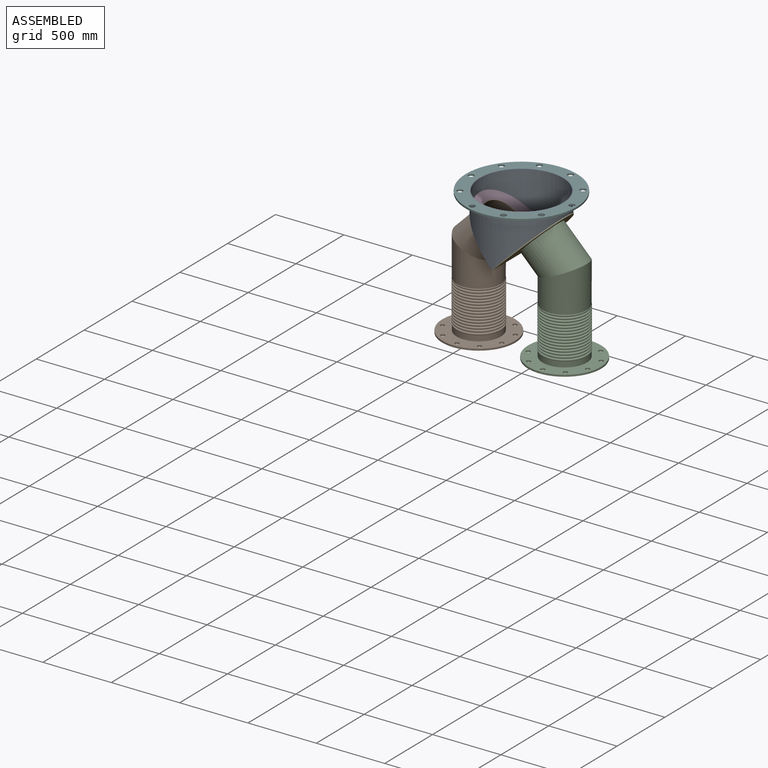
[diagram: assembled view]
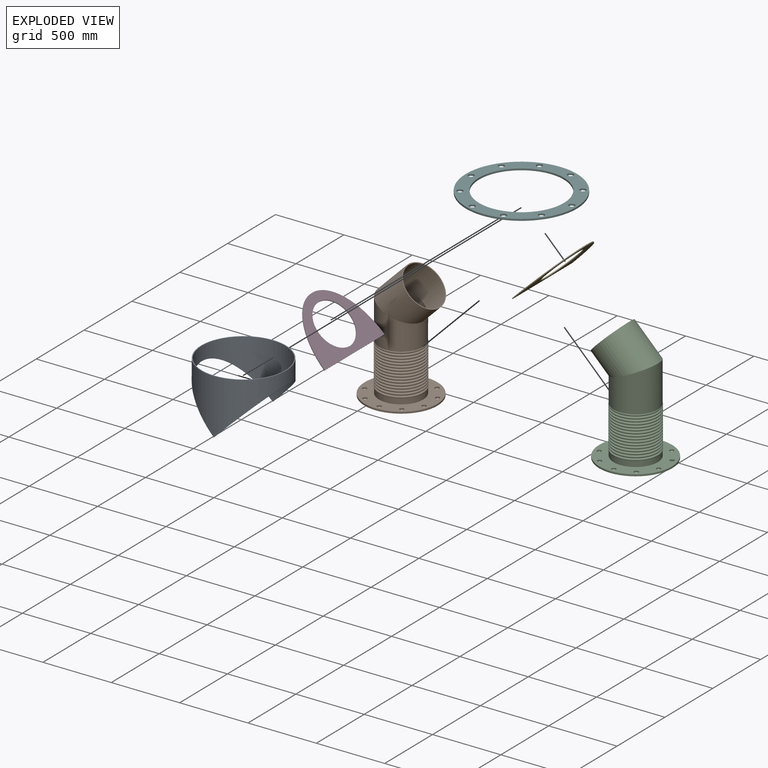
[diagram: exploded view]
GUIDED TOUR — MATED ASSEMBLY WITH SUBASSEMBLIES (Onshape document 0193b54e1186b23830c63294, AutoMate assembly 0193b54e1186b23830c63294_a6a39638752464d87c990a46_e3f97334913c53f67a5aba08_default)

This assembly has 18 component occurrences arranged in 6 top-level units: 4 individual components plus 2 subassemblies (S0, S1). The tour has two levels: first the top level, where each subassembly is treated as one rigid unit; then each subassembly is toured internally in its own section (nesting deeper than one subassembly level is flattened into its subassembly's section).

Components are labeled P0..P17 across the whole record; subassembly units are labeled S0..S1. A mate is a constraint between two units; its type names the relative motion it leaves free:
  FASTENED — locks the two components together rigidly (no relative motion).
Axis/direction vectors are unit vectors and 'through' points are millimeter coordinates, both in the assembly's world frame.

TOP-LEVEL MATES (between units; each subassembly's internal mates are listed in its own section)
  1. FASTENED "Fastened 2": P14 <-> S1, direction (-0.707, 0.000, 0.707) through (-855.40, -209.29, -97.05) mm
  2. FASTENED "Fastened 5": P14 <-> P0, direction (0.000, -1.000, 0.000) through (-1003.58, -520.44, -245.23) mm
  3. FASTENED "Fastened 4": P16 <-> P0, direction (0.000, 0.000, 1.000) through (-1003.58, -209.29, 161.17) mm
  4. FASTENED "Fastened 3": P12 <-> P14, direction (0.000, -1.000, 0.000) through (-1003.58, -520.44, -245.23) mm
  5. FASTENED "Fastened 1": S0 <-> P12, direction (0.707, 0.000, 0.707) through (-1147.26, -209.29, -92.56) mm

TOP-LEVEL ASSEMBLY ORDER
  1. P16 — the base component [order verified]
  2. P0 [order verified]
  3. P14 [order verified]
  4. P12 [order verified]
  5. S1 [order verified]
  6. S0 [order verified]
Order-tag legend:
  [order verified] — this step's position reverses a verified removal order: the component was checked to insert without passing through the ones already placed.

Of the 18 component occurrences, 14 carry the full construction recipe — the FeatureScript program that regenerates the part's solid from scratch; the rest are supplied as boundary geometry only. Each toured unit is shown spotlighted twice — assembled, then exploded with a leader line back to its socket (green = recipe-attached component, orange = geometry-only, blue = subassembly unit; the rest desaturated gray).
NOTE — this tour is split across 2 documents so each fits a 32k-token context. This is document 1: the component sections continue in the remaining 1 document, each repeating the header above.
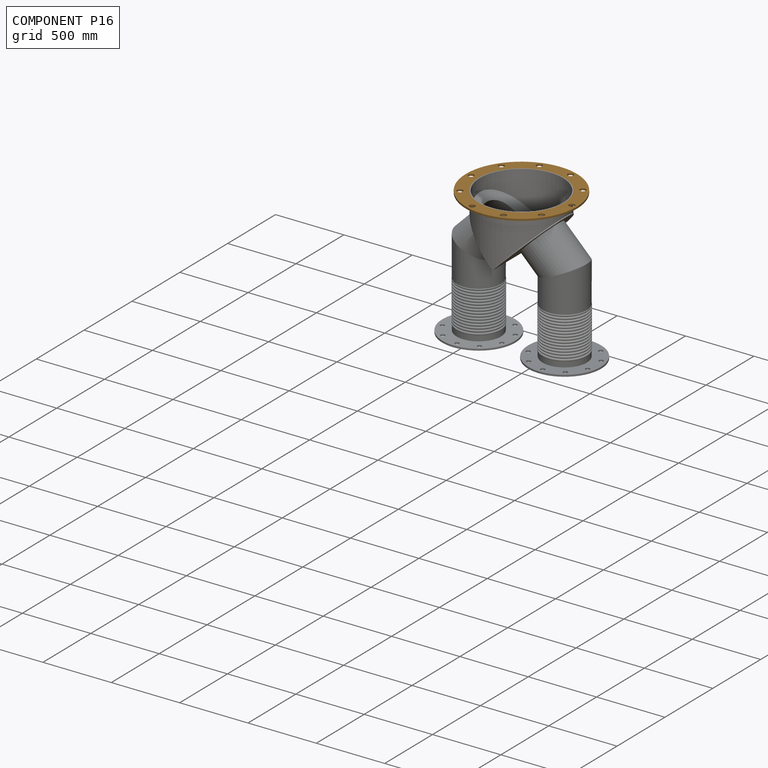
[diagram: component P16 — assembled]
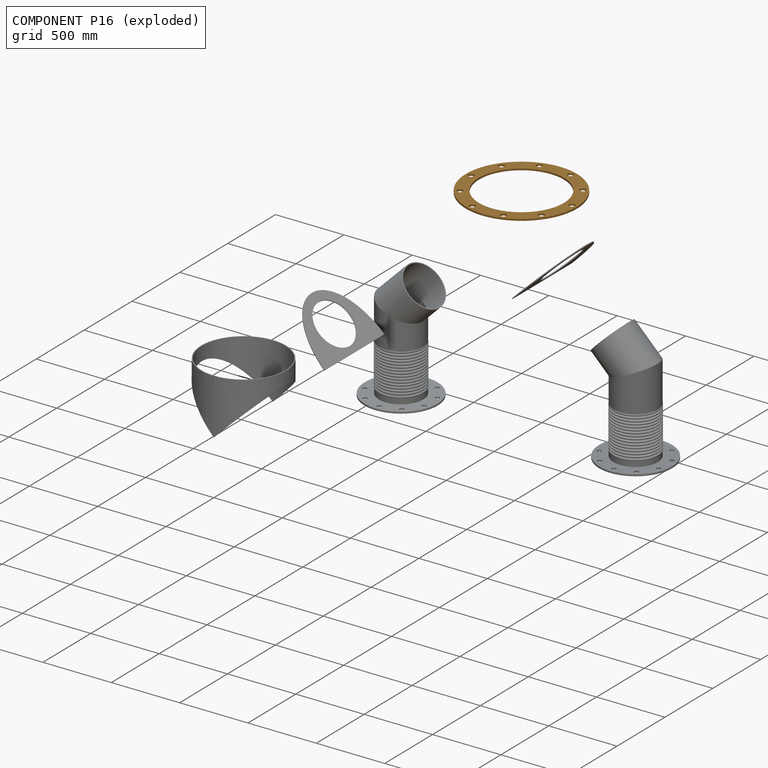
[diagram: component P16 — exploded]
COMPONENT P16 — geometry summary (no construction recipe available for this part):
  bounding box: 812.8 x 812.8 x 12.7 mm
  B-rep topology: 1 solid, 14 faces, 90 edges
  volume: 2547575 mm^3 (30% of its bounding box)
  symmetry: 2-fold rotationally symmetric about the x axis; 2-fold rotationally symmetric about the y axis; 2-fold rotationally symmetric about the z axis; mirror-symmetric across its x mid-plane, y mid-plane, z mid-plane
Held by: FASTENED mate "Fastened 4" to P0.
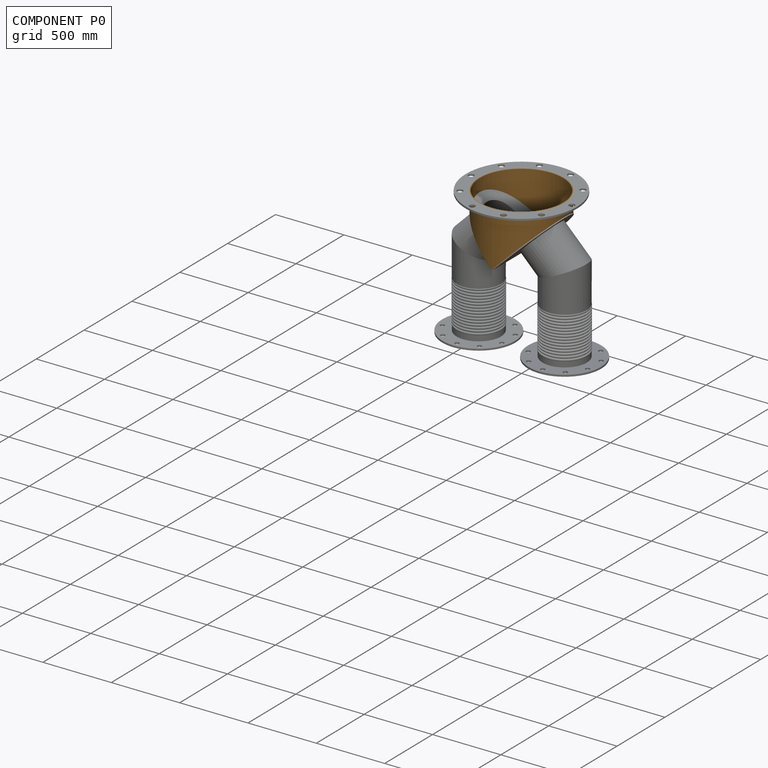
[diagram: component P0 — assembled]
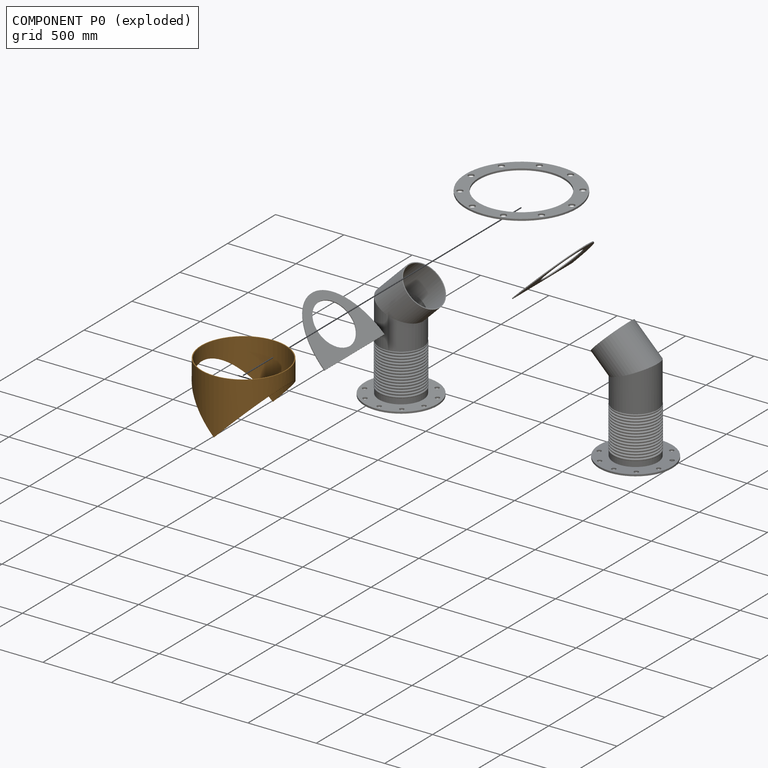
[diagram: component P0 — exploded]
COMPONENT P0 — geometry summary (no construction recipe available for this part):
  bounding box: 622.3 x 622.3 x 406.4 mm
  B-rep topology: 1 solid, 5 faces, 24 edges
  volume: 2584466 mm^3 (2% of its bounding box)
  symmetry: 2-fold rotationally symmetric about the z axis; mirror-symmetric across its x mid-plane, y mid-plane
Held by: FASTENED mate "Fastened 5" to P14; FASTENED mate "Fastened 4" to P16.
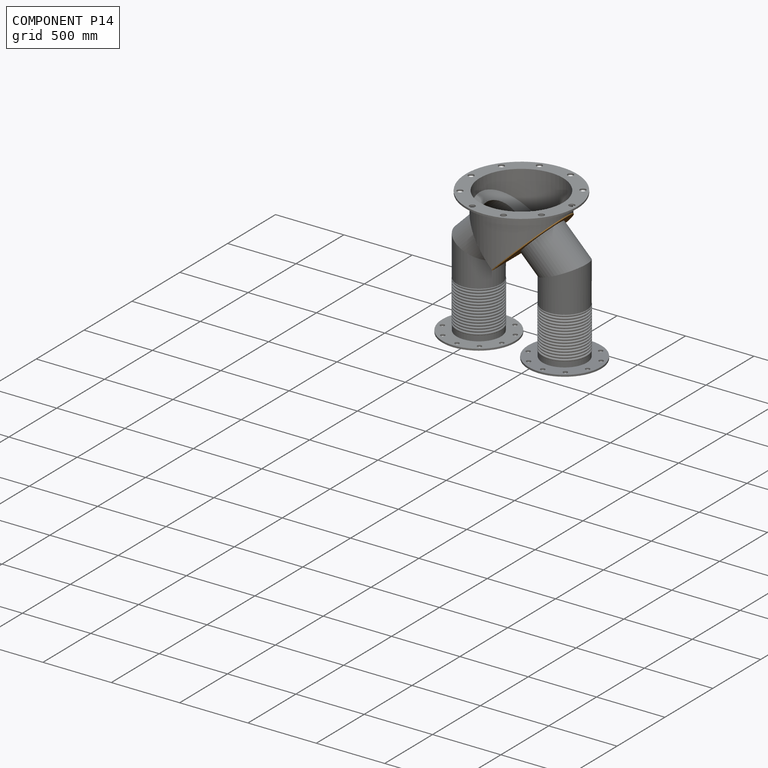
[diagram: component P14 — assembled]
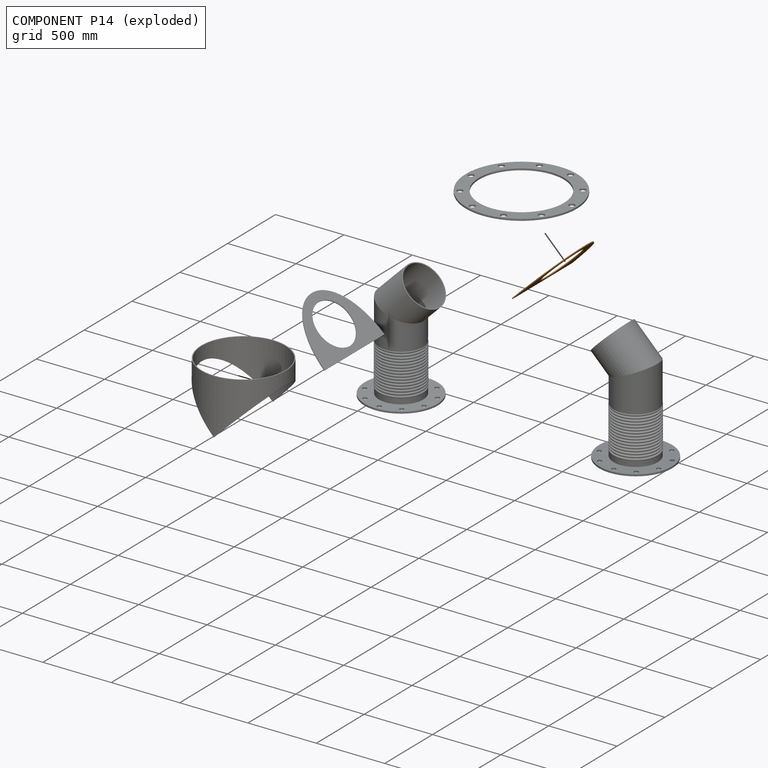
[diagram: component P14 — exploded]
COMPONENT P14 — geometry summary (no construction recipe available for this part):
  bounding box: 622.3 x 315.6 x 315.6 mm
  B-rep topology: 1 solid, 6 faces, 26 edges
  volume: 842618 mm^3 (1% of its bounding box)
  symmetry: mirror-symmetric across its y mid-plane
Held by: FASTENED mate "Fastened 2" to P2; FASTENED mate "Fastened 5" to P0; FASTENED mate "Fastened 3" to P12.
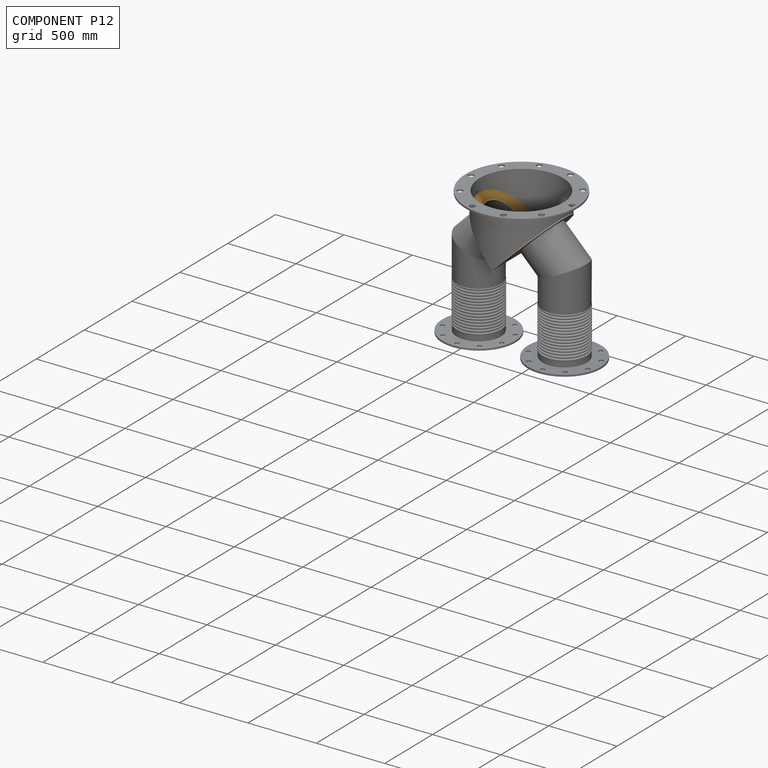
[diagram: component P12 — assembled]
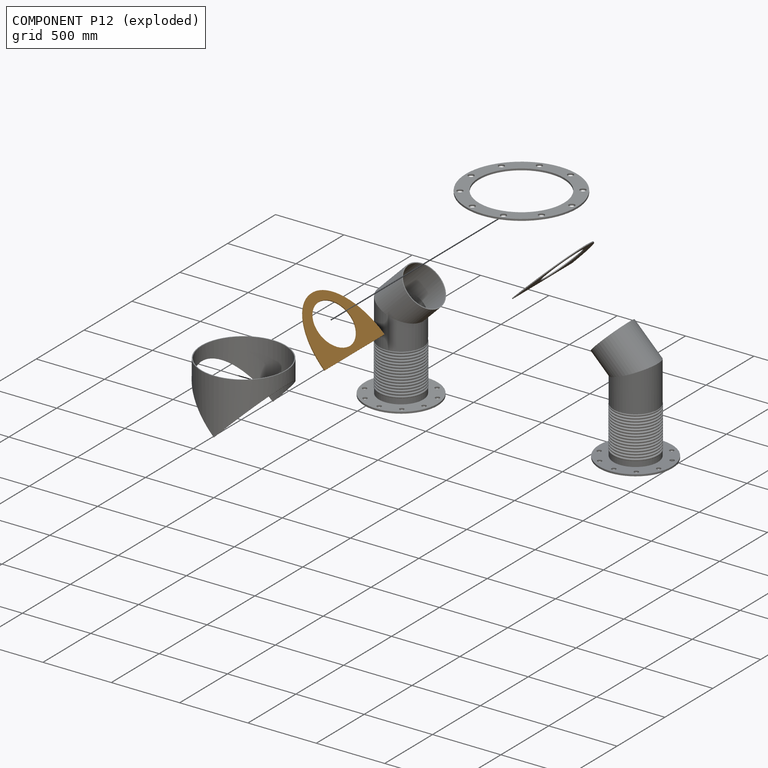
[diagram: component P12 — exploded]
COMPONENT P12 — geometry summary (no construction recipe available for this part):
  bounding box: 622.3 x 315.6 x 315.6 mm
  B-rep topology: 1 solid, 6 faces, 26 edges
  volume: 842618 mm^3 (1% of its bounding box)
  symmetry: mirror-symmetric across its y mid-plane
Held by: FASTENED mate "Fastened 3" to P14; FASTENED mate "Fastened 1" to P1.
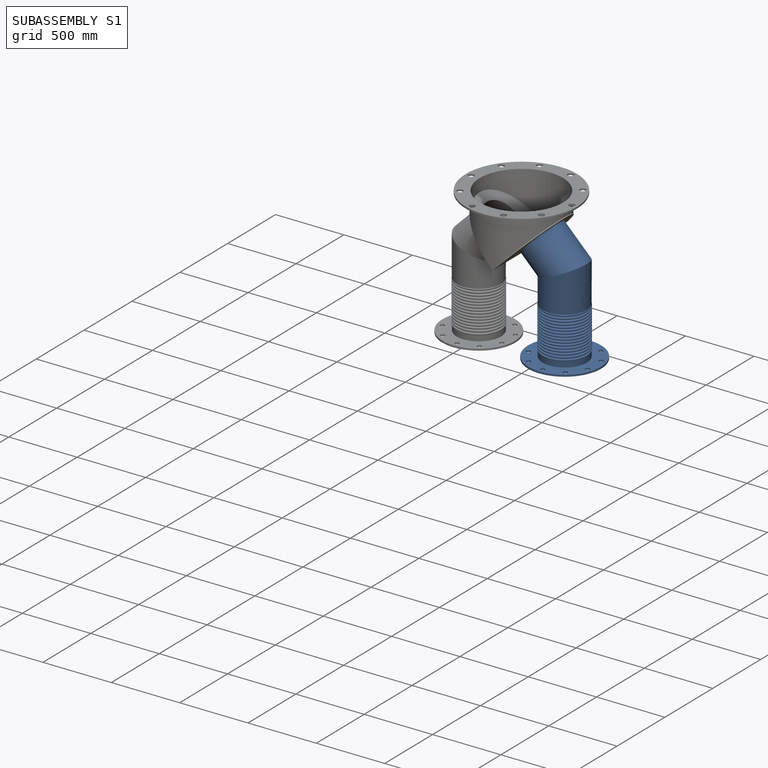
[diagram: subassembly S1 — assembled]
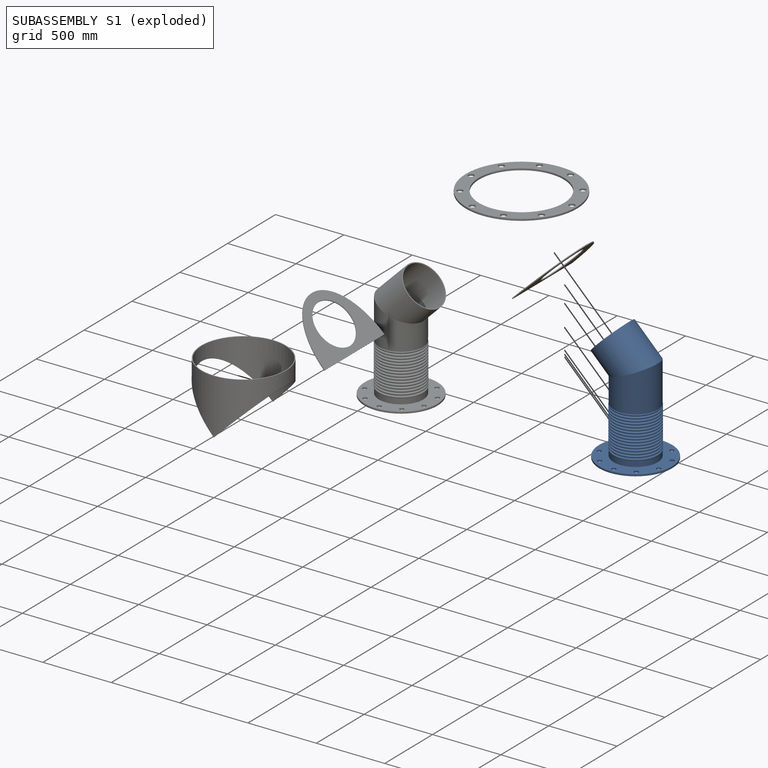
[diagram: subassembly S1 — exploded]
SUBASSEMBLY S1 — 7 components (P2, P3, P4, P7, P11, P15, P17), of which 7 recipe-attached; toured below.
Held by: FASTENED mate "Fastened 2" to P14.
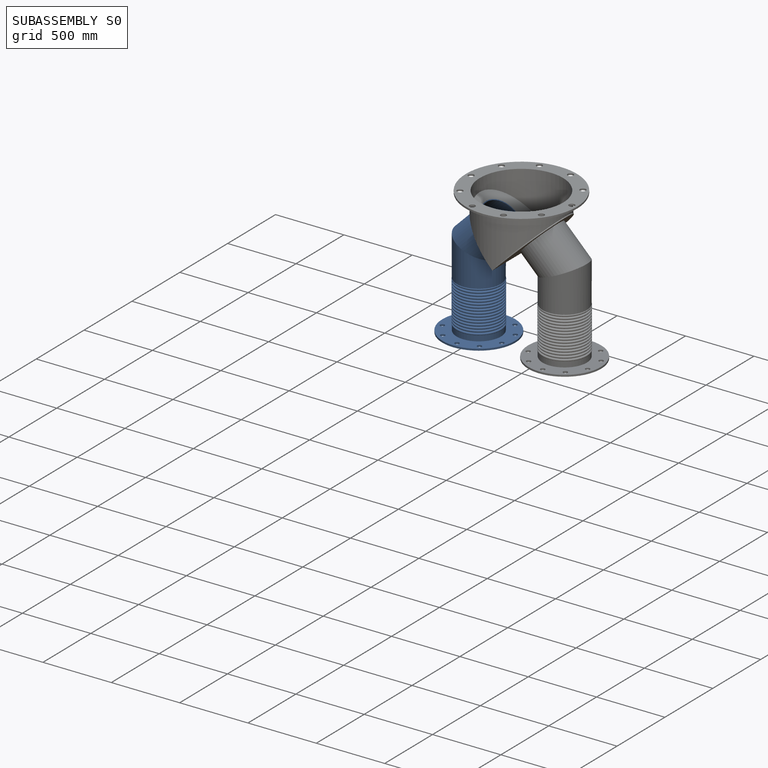
[diagram: subassembly S0 — assembled]
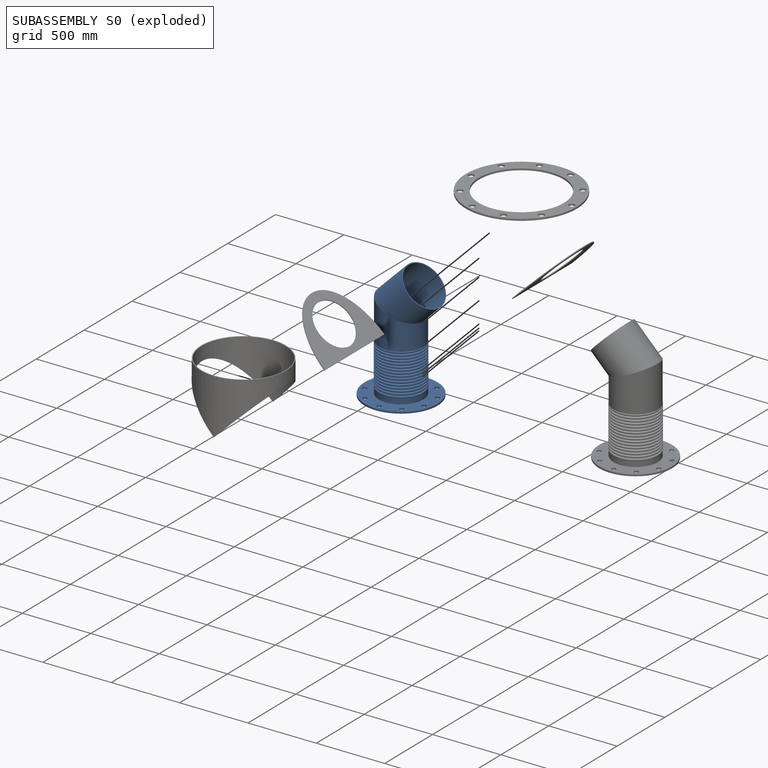
[diagram: subassembly S0 — exploded]
SUBASSEMBLY S0 — 7 components (P1, P5, P6, P8, P9, P10, P13), of which 7 recipe-attached; toured below.
Held by: FASTENED mate "Fastened 1" to P12.
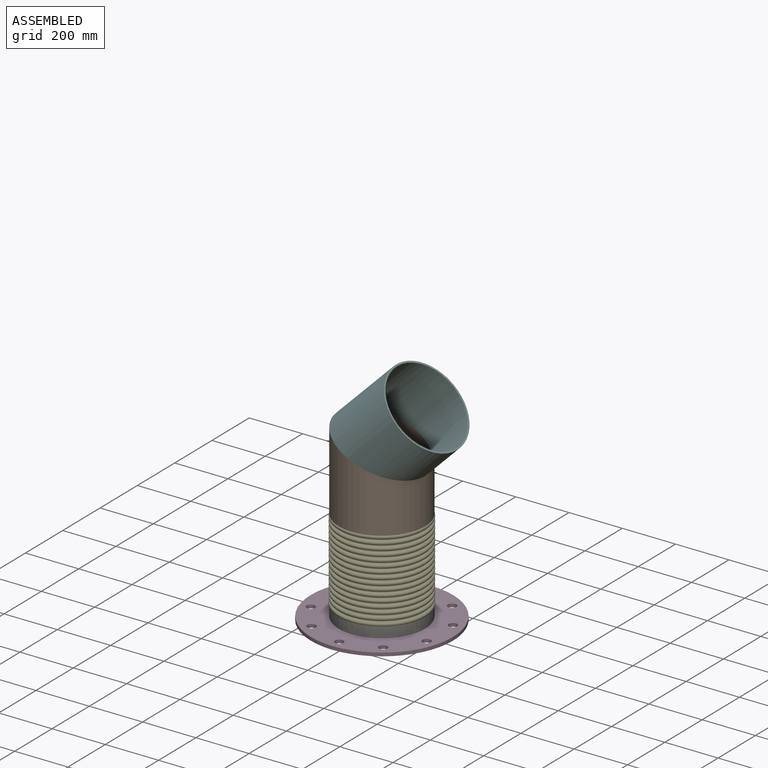
[diagram: subassembly S0 — assembled view]
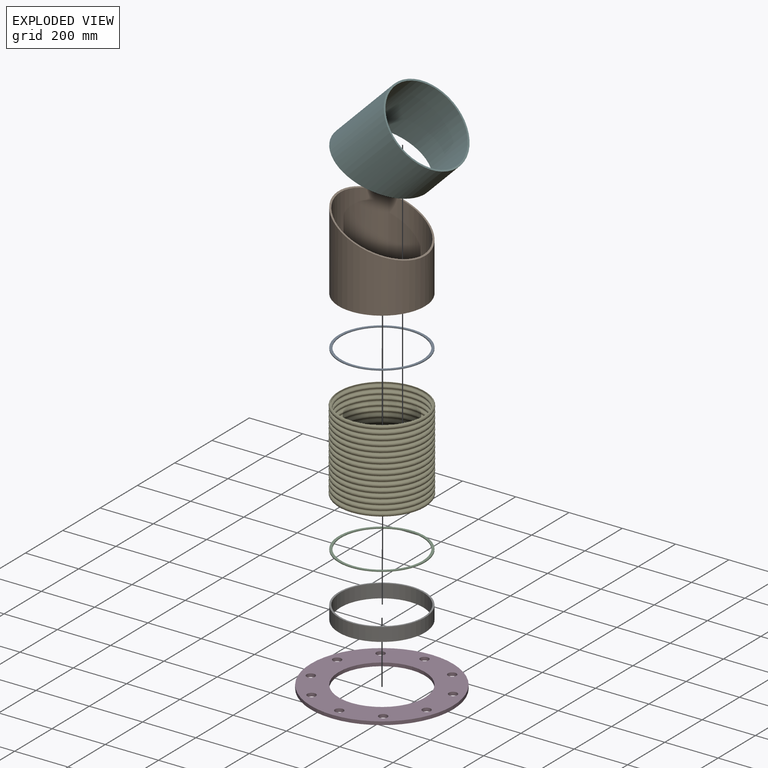
[diagram: subassembly S0 — exploded view]
SUBASSEMBLY S0 TOUR — 7 components, shown here in isolation at its own camera.

INTERNAL MATES
  1. FASTENED "Fastened 1": P13 <-> P8, direction (0.000, 0.000, -1.000) through (-1315.36, -209.29, -858.48) mm
  2. FASTENED "Fastened 5": P1 <-> P5, direction (0.000, 0.000, -1.000) through (-1315.36, -209.29, -498.39) mm
  3. FASTENED "Fastened 3": P6 <-> P9, direction (0.000, 0.000, -1.000) through (-1315.36, -209.29, -807.68) mm
  4. FASTENED "Fastened 4": P9 <-> P1, direction (0.000, 0.000, -1.000) through (-1315.36, -209.29, -498.39) mm
  5. FASTENED "Fastened 2": P13 <-> P6, direction (0.000, 0.000, 1.000) through (-1315.36, -209.29, -807.68) mm
  6. FASTENED "Fastened 6": P5 <-> P10, direction (0.383, 0.000, 0.924) through (-1315.36, -209.29, -260.66) mm
  7. FASTENED "Fastened 1": P13 <-> P8, direction (0.000, 0.000, -1.000) through (-1315.36, -209.29, -858.48) mm
  8. FASTENED "Fastened 6": P5 <-> P10, direction (0.383, 0.000, 0.924) through (-1315.36, -209.29, -260.66) mm
  9. FASTENED "Fastened 4": P9 <-> P1, direction (0.000, 0.000, -1.000) through (-1315.36, -209.29, -498.39) mm
  10. FASTENED "Fastened 3": P6 <-> P9, direction (0.000, 0.000, -1.000) through (-1315.36, -209.29, -807.68) mm
  11. FASTENED "Fastened 2": P13 <-> P6, direction (0.000, 0.000, 1.000) through (-1315.36, -209.29, -807.68) mm
  12. FASTENED "Fastened 5": P1 <-> P5, direction (0.000, 0.000, -1.000) through (-1315.36, -209.29, -498.39) mm

ASSEMBLY ORDER (within the subassembly)
  1. P13 — the base component [order verified]
  2. P8 [order verified]
  3. P6 [order verified]
  4. P9 [order verified]
  5. P1 [order verified]
  6. P5 [order verified]
  7. P10 [order verified]
Order-tag legend:
  [order verified] — this step's position reverses a verified removal order: the component was checked to insert without passing through the ones already placed.
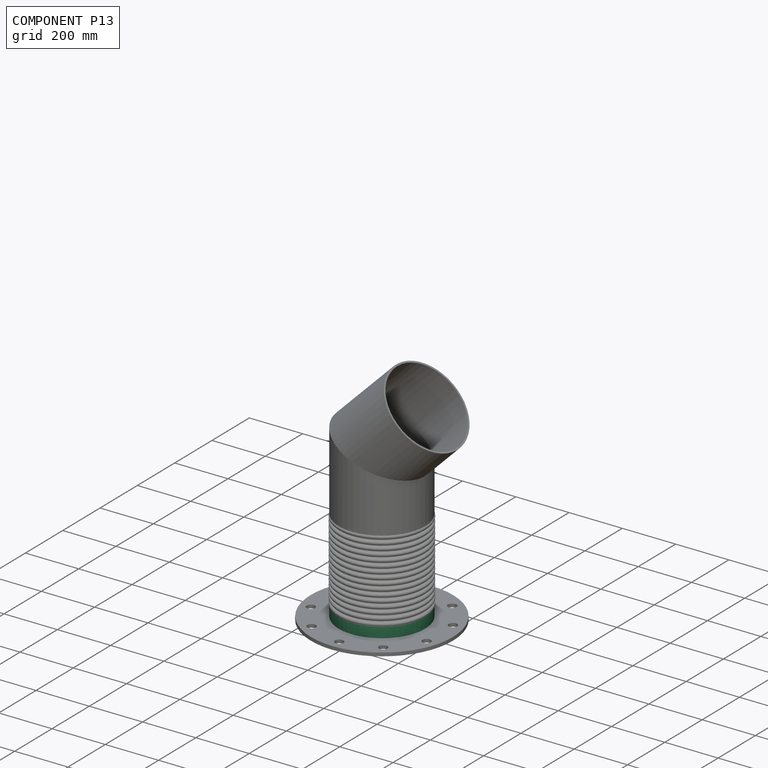
[diagram: component P13 — assembled]
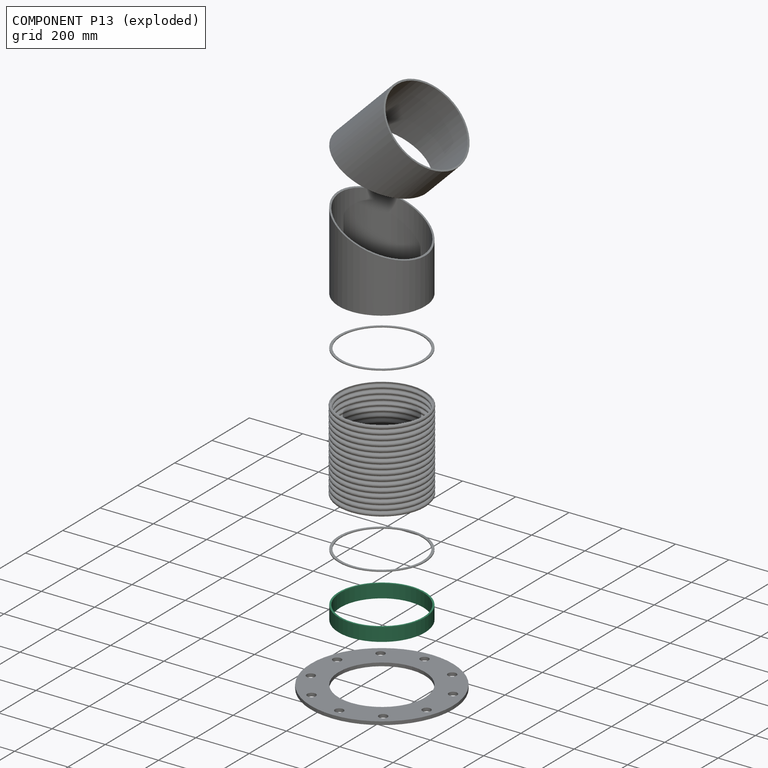
[diagram: component P13 — exploded]
COMPONENT P13 — recipe-attached (CADFS 00170316, mesh-verified: the recipe's output STEP matches this component's geometry to below the mesh-comparison resolution (tessellation chordal tolerance ~0.691 mm)).
Held by: FASTENED mate "Fastened 1" to P8; FASTENED mate "Fastened 2" to P6; FASTENED mate "Fastened 1" to P8; FASTENED mate "Fastened 2" to P6.
Construction recipe (FeatureScript — the CAD program that rebuilds this solid; sketch coordinates are in the units given by the * unit suffixes, e.g. mm):

FeatureScript 1511;
import(path : "onshape/std/geometry.fs", version : "1511.0");
import(path : "onshape/std/common.fs", version : "1511.0");
const mm = millimeter;
const VERTEX = EntityType.VERTEX;
const EDGE = EntityType.EDGE;
const FACE = EntityType.FACE;
const BODY = EntityType.BODY;
function v(x, y){return vector(x, y);}
function OD(order){return orderDisambiguation(order);}
function OSD(set){return originalSetDisambiguation(set);}
function TD(topology){return topologyDisambiguation(topology);}
function TDD(query){return trueDependencyDisambiguation(query);}
function sQuery(a, b, c) {return sketchEntityQuery(a, b, c);}

annotation { "Feature Type Name" : "Feature", "Feature Type Description" : "" }
export const myFeature = defineFeature(function(context is Context, id is Id, definition is map)
    precondition{}
    {
        {
            var Q0;
            Q0=qCreatedBy(makeId("Top.planeOp"),FACE);
            var sketch = newSketch(context, id + "F0", { "sketchPlane" : qUnion([Q0])});
            skCircle(sketch, "E0", {"center": v(0, 0) * mm, "radius": 161.93 * mm});
            skCircle(sketch, "E1.0", {"center": v(0, 0) * mm, "radius": 155.58 * mm});
            skSolve(sketch);
        }
        {
            var Q0;
            Q0=makeQuery(id+"F0.imprint","IMPRINT",FACE,{"disambiguationData":[TD([[makeQuery(id+"F0.imprint","IMPRINT",EDGE,{"derivedFrom":sQuery(id+"F0.wireOp",EDGE,"E1.0")}),-1.0]])]});
            extrude(context, id + "F1", {"entities" : qUnion([Q0]), "depth" : 50.8 * mm});
        }
    });
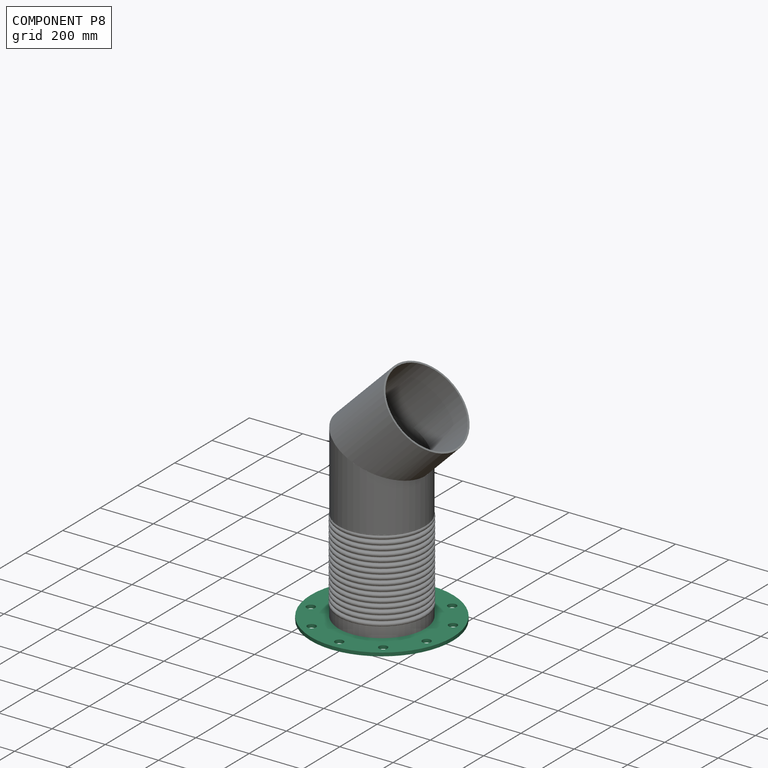
[diagram: component P8 — assembled]
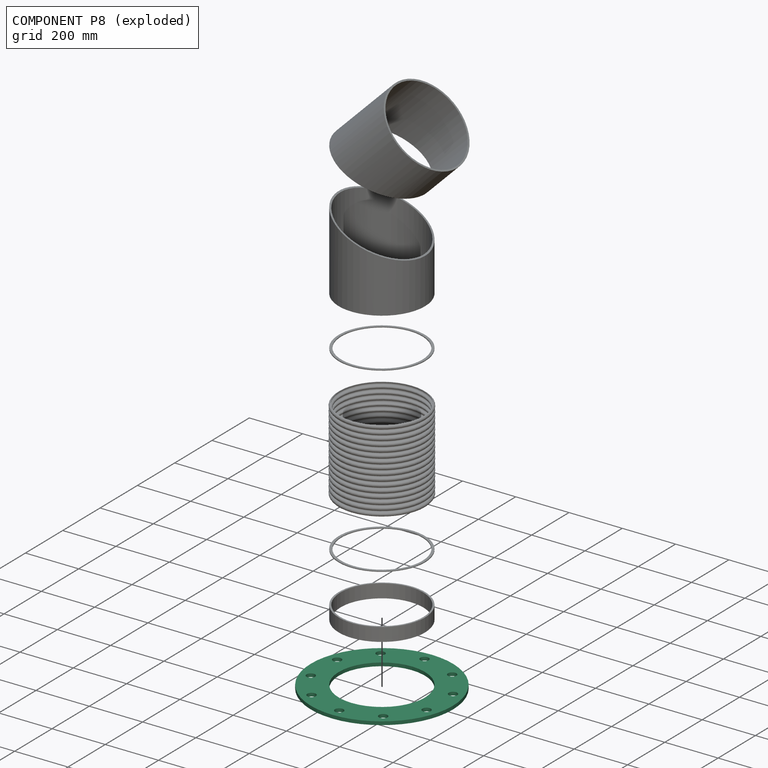
[diagram: component P8 — exploded]
COMPONENT P8 — recipe-attached (CADFS 00170315, mesh-verified: the recipe's output STEP matches this component's geometry to below the mesh-comparison resolution (tessellation chordal tolerance ~1.13 mm)).
Held by: FASTENED mate "Fastened 1" to P13; FASTENED mate "Fastened 1" to P13.
Construction recipe (FeatureScript — the CAD program that rebuilds this solid; sketch coordinates are in the units given by the * unit suffixes, e.g. mm):

FeatureScript 1511;
import(path : "onshape/std/geometry.fs", version : "1511.0");
import(path : "onshape/std/common.fs", version : "1511.0");
const mm = millimeter;
const VERTEX = EntityType.VERTEX;
const EDGE = EntityType.EDGE;
const FACE = EntityType.FACE;
const BODY = EntityType.BODY;
function v(x, y){return vector(x, y);}
function OD(order){return orderDisambiguation(order);}
function OSD(set){return originalSetDisambiguation(set);}
function TD(topology){return topologyDisambiguation(topology);}
function TDD(query){return trueDependencyDisambiguation(query);}
function sQuery(a, b, c) {return sketchEntityQuery(a, b, c);}

annotation { "Feature Type Name" : "Feature", "Feature Type Description" : "" }
export const myFeature = defineFeature(function(context is Context, id is Id, definition is map)
    precondition{}
    {
        {
            var Q0;
            Q0=qCreatedBy(makeId("Top.planeOp"),FACE);
            var sketch = newSketch(context, id + "F0", { "sketchPlane" : qUnion([Q0])});
            skCircle(sketch, "E0", {"center": v(0, 0) * mm, "radius": 161.93 * mm});
            skCircle(sketch, "E1", {"center": v(0, 0) * mm, "radius": 266.7 * mm});
            skSolve(sketch);
        }
        {
            var Q0;
            Q0=makeQuery(id+"F0.imprint","IMPRINT",FACE,{"disambiguationData":[TD([[makeQuery(id+"F0.imprint","IMPRINT",EDGE,{"derivedFrom":sQuery(id+"F0.wireOp",EDGE,"E0")}),-1.0]])]});
            extrude(context, id + "F1", {"entities" : qUnion([Q0]), "depth" : 12.7 * mm});
        }
        {
            var Q0;
            Q0=qCreatedBy(makeId("Top.planeOp"),FACE);
            var sketch = newSketch(context, id + "F2", { "sketchPlane" : qUnion([Q0])});
            skCircle(sketch, "E2", {"center": v(0, 0) * mm, "radius": 228.6 * mm, "construction": true});
            skCircle(sketch, "E3", {"center": v(0, 228.6) * mm, "radius": 15.88 * mm});
            skCircle(sketch, "E4.1.0", {"center": v(-134.37, 184.94) * mm, "radius": 15.88 * mm});
            skCircle(sketch, "E4.2.0", {"center": v(-217.41, 70.64) * mm, "radius": 15.88 * mm});
            skCircle(sketch, "E4.3.0", {"center": v(-217.41, -70.64) * mm, "radius": 15.88 * mm});
            skCircle(sketch, "E4.4.0", {"center": v(-134.37, -184.94) * mm, "radius": 15.88 * mm});
            skCircle(sketch, "E4.5.0", {"center": v(0, -228.6) * mm, "radius": 15.88 * mm});
            skCircle(sketch, "E4.6.0", {"center": v(134.37, -184.94) * mm, "radius": 15.88 * mm});
            skCircle(sketch, "E4.7.0", {"center": v(217.41, -70.64) * mm, "radius": 15.88 * mm});
            skCircle(sketch, "E4.8.0", {"center": v(217.41, 70.64) * mm, "radius": 15.88 * mm});
            skCircle(sketch, "E4.9.0", {"center": v(134.37, 184.94) * mm, "radius": 15.88 * mm});
            skSolve(sketch);
        }
        {
            var Q0;
            Q0 = qSketchRegion(id + "F2", true);
            extrude(context, id + "F3", {"entities" : qUnion([Q0]), "operationType" : NewBodyOperationType.REMOVE, "depth" : 15.88 * mm});
        }
    });
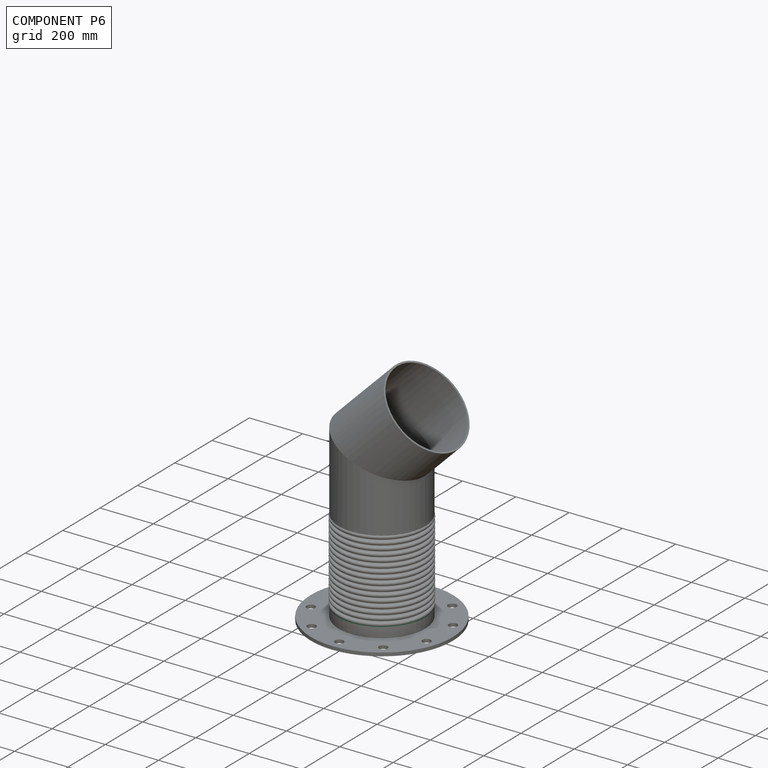
[diagram: component P6 — assembled]
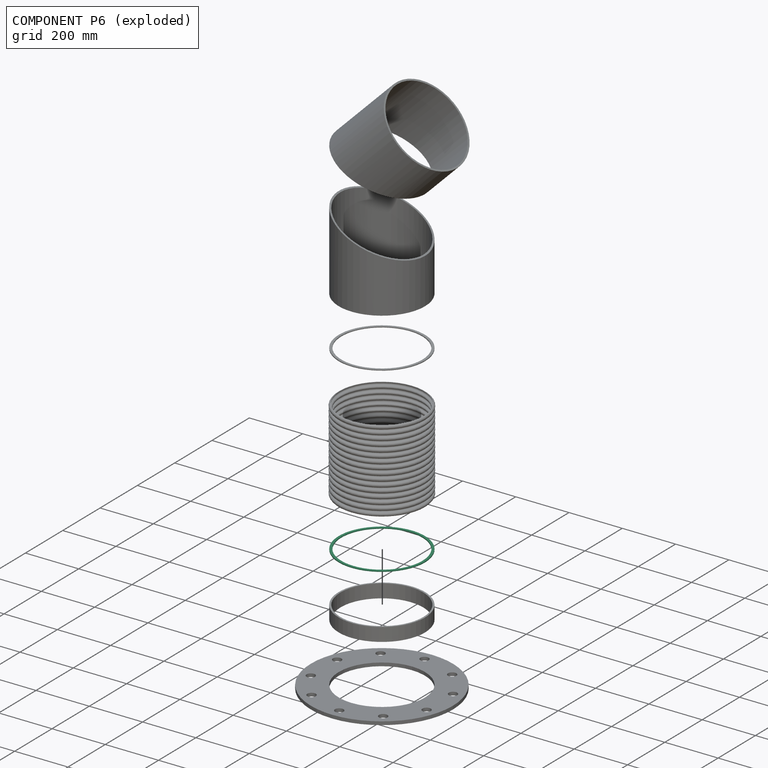
[diagram: component P6 — exploded]
COMPONENT P6 — same part as P1 (CADFS 00170317); its construction recipe is shown at P1.
Held by: FASTENED mate "Fastened 3" to P9; FASTENED mate "Fastened 2" to P13; FASTENED mate "Fastened 3" to P9; FASTENED mate "Fastened 2" to P13.
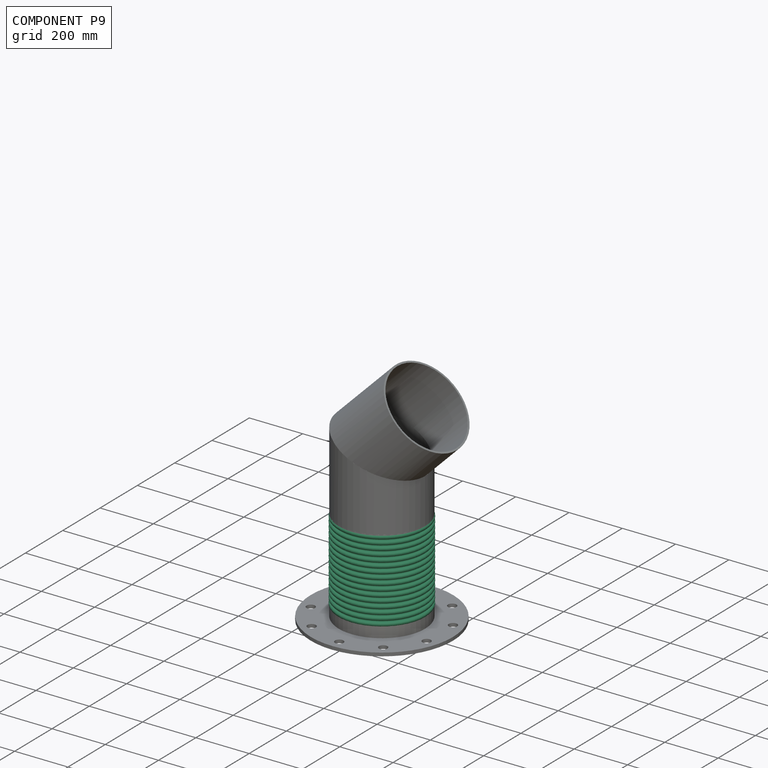
[diagram: component P9 — assembled]
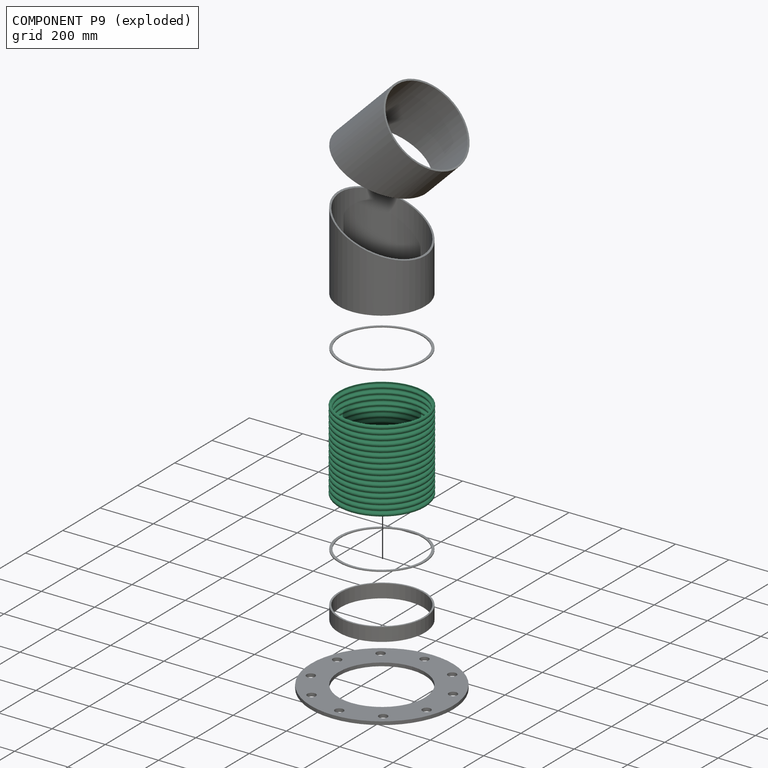
[diagram: component P9 — exploded]
COMPONENT P9 — recipe-attached (CADFS 00170318, mesh-verified: the recipe's output STEP matches this component's geometry to below the mesh-comparison resolution (tessellation chordal tolerance ~0.837 mm)).
Held by: FASTENED mate "Fastened 3" to P6; FASTENED mate "Fastened 4" to P1; FASTENED mate "Fastened 4" to P1; FASTENED mate "Fastened 3" to P6.
Construction recipe (FeatureScript — the CAD program that rebuilds this solid; sketch coordinates are in the units given by the * unit suffixes, e.g. mm):

FeatureScript 1511;
import(path : "onshape/std/geometry.fs", version : "1511.0");
import(path : "onshape/std/common.fs", version : "1511.0");
const mm = millimeter;
const VERTEX = EntityType.VERTEX;
const EDGE = EntityType.EDGE;
const FACE = EntityType.FACE;
const BODY = EntityType.BODY;
function v(x, y){return vector(x, y);}
function OD(order){return orderDisambiguation(order);}
function OSD(set){return originalSetDisambiguation(set);}
function TD(topology){return topologyDisambiguation(topology);}
function TDD(query){return trueDependencyDisambiguation(query);}
function sQuery(a, b, c) {return sketchEntityQuery(a, b, c);}

annotation { "Feature Type Name" : "Feature", "Feature Type Description" : "" }
export const myFeature = defineFeature(function(context is Context, id is Id, definition is map)
    precondition{}
    {
        {
            var Q0;
            Q0=qCreatedBy(makeId("Top.planeOp"),FACE);
            var sketch = newSketch(context, id + "F0", { "sketchPlane" : qUnion([Q0])});
            skArc(sketch, "E0", {"start": v(0, 0) * mm, "mid": v(4.92, 4.92) * mm, "end": v(0, 9.84) * mm});
            skLineSegment(sketch, "E1", {"start": v(0, 0) * mm, "end": v(0, 307.4) * mm, "construction": true});
            skArc(sketch, "E2.0.1.0", {"start": v(0, 19.71) * mm, "mid": v(4.92, 24.63) * mm, "end": v(0, 29.55) * mm});
            skArc(sketch, "E2.0.2.0", {"start": v(0, 39.42) * mm, "mid": v(4.92, 44.34) * mm, "end": v(0, 49.26) * mm});
            skArc(sketch, "E2.0.3.0", {"start": v(0, 59.13) * mm, "mid": v(4.92, 64.05) * mm, "end": v(0, 68.97) * mm});
            skArc(sketch, "E2.0.4.0", {"start": v(0, 78.84) * mm, "mid": v(4.92, 83.76) * mm, "end": v(0, 88.68) * mm});
            skArc(sketch, "E2.0.5.0", {"start": v(0, 98.55) * mm, "mid": v(4.92, 103.47) * mm, "end": v(0, 108.4) * mm});
            skArc(sketch, "E2.0.6.0", {"start": v(0, 118.26) * mm, "mid": v(4.92, 123.18) * mm, "end": v(0, 128.1) * mm});
            skArc(sketch, "E2.0.7.0", {"start": v(0, 137.97) * mm, "mid": v(4.92, 142.9) * mm, "end": v(0, 147.82) * mm});
            skArc(sketch, "E2.0.8.0", {"start": v(0, 157.68) * mm, "mid": v(4.92, 162.6) * mm, "end": v(0, 167.53) * mm});
            skArc(sketch, "E2.0.9.0", {"start": v(0, 177.4) * mm, "mid": v(4.92, 182.31) * mm, "end": v(0, 187.24) * mm});
            skArc(sketch, "E2.0.10.0", {"start": v(0, 197.1) * mm, "mid": v(4.92, 202.03) * mm, "end": v(0, 206.95) * mm});
            skArc(sketch, "E2.0.11.0", {"start": v(0, 216.81) * mm, "mid": v(4.92, 221.74) * mm, "end": v(0, 226.66) * mm});
            skLineSegment(sketch, "E2.direction2", {"start": v(0, 0) * mm, "end": v(0, 19.71) * mm, "construction": true});
            skArc(sketch, "E3.0.0.12", {"start": v(0, 236.52) * mm, "mid": v(4.92, 241.45) * mm, "end": v(0, 246.37) * mm});
            skArc(sketch, "E3.0.0.13", {"start": v(0, 256.24) * mm, "mid": v(4.92, 261.16) * mm, "end": v(0, 266.08) * mm});
            skArc(sketch, "E3.0.0.14", {"start": v(0, 275.95) * mm, "mid": v(4.92, 280.87) * mm, "end": v(0, 285.79) * mm});
            skArc(sketch, "E4.0.0.15", {"start": v(0, 295.66) * mm, "mid": v(4.92, 300.58) * mm, "end": v(0, 305.5) * mm});
            skArc(sketch, "E5", {"start": v(0, 19.71) * mm, "mid": v(-4.93, 14.78) * mm, "end": v(0, 9.84) * mm});
            skArc(sketch, "E6.0.1.0", {"start": v(0, 39.42) * mm, "mid": v(-4.93, 34.49) * mm, "end": v(0, 29.55) * mm});
            skArc(sketch, "E6.0.2.0", {"start": v(0, 59.13) * mm, "mid": v(-4.93, 54.2) * mm, "end": v(0, 49.26) * mm});
            skArc(sketch, "E6.0.3.0", {"start": v(0, 78.84) * mm, "mid": v(-4.93, 73.9) * mm, "end": v(0, 68.97) * mm});
            skArc(sketch, "E6.0.4.0", {"start": v(0, 98.55) * mm, "mid": v(-4.93, 93.62) * mm, "end": v(0, 88.68) * mm});
            skArc(sketch, "E6.0.5.0", {"start": v(0, 118.26) * mm, "mid": v(-4.93, 113.33) * mm, "end": v(0, 108.4) * mm});
            skArc(sketch, "E6.0.6.0", {"start": v(0, 137.97) * mm, "mid": v(-4.93, 133.04) * mm, "end": v(0, 128.1) * mm});
            skArc(sketch, "E6.0.7.0", {"start": v(0, 157.68) * mm, "mid": v(-4.93, 152.75) * mm, "end": v(0, 147.82) * mm});
            skArc(sketch, "E6.0.8.0", {"start": v(0, 177.4) * mm, "mid": v(-4.93, 172.46) * mm, "end": v(0, 167.53) * mm});
            skArc(sketch, "E6.0.9.0", {"start": v(0, 197.1) * mm, "mid": v(-4.93, 192.17) * mm, "end": v(0, 187.24) * mm});
            skArc(sketch, "E6.0.10.0", {"start": v(0, 216.81) * mm, "mid": v(-4.93, 211.88) * mm, "end": v(0, 206.95) * mm});
            skArc(sketch, "E6.0.11.0", {"start": v(0, 236.52) * mm, "mid": v(-4.93, 231.6) * mm, "end": v(0, 226.66) * mm});
            skArc(sketch, "E6.0.12.0", {"start": v(0, 256.24) * mm, "mid": v(-4.93, 251.3) * mm, "end": v(0, 246.37) * mm});
            skArc(sketch, "E6.0.13.0", {"start": v(0, 275.95) * mm, "mid": v(-4.93, 271.01) * mm, "end": v(0, 266.08) * mm});
            skArc(sketch, "E6.0.14.0", {"start": v(0, 295.66) * mm, "mid": v(-4.93, 290.72) * mm, "end": v(0, 285.79) * mm});
            skArc(sketch, "E7.0", {"start": v(0, -1.9) * mm, "mid": v(6.82, 4.92) * mm, "end": v(0, 11.74) * mm});
            skArc(sketch, "E8.0", {"start": v(0, 17.81) * mm, "mid": v(-3.04, 14.78) * mm, "end": v(0, 11.74) * mm});
            skArc(sketch, "E9.0", {"start": v(0, 17.81) * mm, "mid": v(6.82, 24.63) * mm, "end": v(0, 31.45) * mm});
            skArc(sketch, "E10.0.1.0", {"start": v(0, 37.52) * mm, "mid": v(-3.04, 34.49) * mm, "end": v(0, 31.45) * mm});
            skArc(sketch, "E10.0.1.1", {"start": v(0, 37.52) * mm, "mid": v(6.82, 44.34) * mm, "end": v(0, 51.16) * mm});
            skArc(sketch, "E10.0.2.0", {"start": v(0, 57.23) * mm, "mid": v(-3.04, 54.2) * mm, "end": v(0, 51.16) * mm});
            skArc(sketch, "E10.0.2.1", {"start": v(0, 57.23) * mm, "mid": v(6.82, 64.05) * mm, "end": v(0, 70.87) * mm});
            skArc(sketch, "E10.0.3.0", {"start": v(0, 76.94) * mm, "mid": v(-3.04, 73.9) * mm, "end": v(0, 70.87) * mm});
            skArc(sketch, "E10.0.3.1", {"start": v(0, 76.94) * mm, "mid": v(6.82, 83.76) * mm, "end": v(0, 90.58) * mm});
            skArc(sketch, "E10.0.4.0", {"start": v(0, 96.65) * mm, "mid": v(-3.04, 93.62) * mm, "end": v(0, 90.58) * mm});
            skArc(sketch, "E10.0.4.1", {"start": v(0, 96.65) * mm, "mid": v(6.82, 103.47) * mm, "end": v(0, 110.3) * mm});
            skArc(sketch, "E10.0.5.0", {"start": v(0, 116.37) * mm, "mid": v(-3.04, 113.33) * mm, "end": v(0, 110.3) * mm});
            skArc(sketch, "E10.0.5.1", {"start": v(0, 116.37) * mm, "mid": v(6.82, 123.18) * mm, "end": v(0, 130) * mm});
            skArc(sketch, "E10.0.6.0", {"start": v(0, 136.08) * mm, "mid": v(-3.04, 133.04) * mm, "end": v(0, 130) * mm});
            skArc(sketch, "E10.0.6.1", {"start": v(0, 136.08) * mm, "mid": v(6.82, 142.9) * mm, "end": v(0, 149.71) * mm});
            skArc(sketch, "E10.0.7.0", {"start": v(0, 155.79) * mm, "mid": v(-3.04, 152.75) * mm, "end": v(0, 149.71) * mm});
            skArc(sketch, "E10.0.7.1", {"start": v(0, 155.79) * mm, "mid": v(6.82, 162.6) * mm, "end": v(0, 169.42) * mm});
            skArc(sketch, "E10.0.8.0", {"start": v(0, 175.5) * mm, "mid": v(-3.04, 172.46) * mm, "end": v(0, 169.42) * mm});
            skArc(sketch, "E10.0.8.1", {"start": v(0, 175.5) * mm, "mid": v(6.82, 182.31) * mm, "end": v(0, 189.13) * mm});
            skArc(sketch, "E10.0.9.0", {"start": v(0, 195.2) * mm, "mid": v(-3.04, 192.17) * mm, "end": v(0, 189.13) * mm});
            skArc(sketch, "E10.0.9.1", {"start": v(0, 195.2) * mm, "mid": v(6.82, 202.03) * mm, "end": v(0, 208.84) * mm});
            skArc(sketch, "E10.0.10.0", {"start": v(0, 214.92) * mm, "mid": v(-3.04, 211.88) * mm, "end": v(0, 208.84) * mm});
            skArc(sketch, "E10.0.10.1", {"start": v(0, 214.92) * mm, "mid": v(6.82, 221.74) * mm, "end": v(0, 228.55) * mm});
            skArc(sketch, "E10.0.11.0", {"start": v(0, 234.63) * mm, "mid": v(-3.04, 231.6) * mm, "end": v(0, 228.55) * mm});
            skArc(sketch, "E10.0.11.1", {"start": v(0, 234.63) * mm, "mid": v(6.82, 241.45) * mm, "end": v(0, 248.26) * mm});
            skArc(sketch, "E10.0.12.0", {"start": v(0, 254.34) * mm, "mid": v(-3.04, 251.3) * mm, "end": v(0, 248.26) * mm});
            skArc(sketch, "E10.0.12.1", {"start": v(0, 254.34) * mm, "mid": v(6.82, 261.16) * mm, "end": v(0, 267.98) * mm});
            skArc(sketch, "E10.0.13.0", {"start": v(0, 274.05) * mm, "mid": v(-3.04, 271.01) * mm, "end": v(0, 267.98) * mm});
            skArc(sketch, "E10.0.13.1", {"start": v(0, 274.05) * mm, "mid": v(6.82, 280.87) * mm, "end": v(0, 287.69) * mm});
            skArc(sketch, "E10.0.14.0", {"start": v(0, 293.76) * mm, "mid": v(-3.04, 290.72) * mm, "end": v(0, 287.69) * mm});
            skArc(sketch, "E10.0.14.1", {"start": v(0, 293.76) * mm, "mid": v(6.82, 300.58) * mm, "end": v(0, 307.4) * mm});
            skLineSegment(sketch, "E11", {"start": v(0, 307.4) * mm, "end": v(0, 305.5) * mm});
            skLineSegment(sketch, "E12", {"start": v(0, -1.9) * mm, "end": v(0, 0) * mm});
            skSolve(sketch);
        }
        {
            var Q0;
            Q0=qCreatedBy(makeId("Top.planeOp"),FACE);
            var sketch = newSketch(context, id + "F1", { "sketchPlane" : qUnion([Q0])});
            skLineSegment(sketch, "E13", {"start": v(-157.32, 0) * mm, "end": v(-157.32, 304.8) * mm, "construction": true});
            skSolve(sketch);
        }
        {
            var Q0;
            Q0 = qSketchRegion(id + "F0", true);
            var Q1;
            Q1=sQuery(id+"F1.wireOp",EDGE,"E13");
            revolve(context, id + "F2", {"entities" : qUnion([Q0]), "axis" : qUnion([Q1]), "revolveType" : RevolveType.FULL});
        }
    });
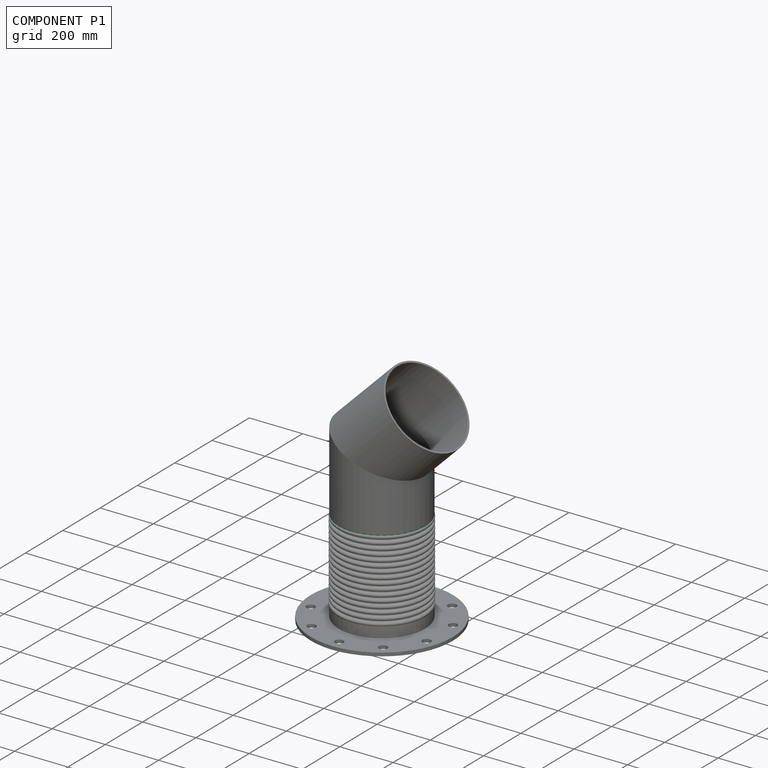
[diagram: component P1 — assembled]
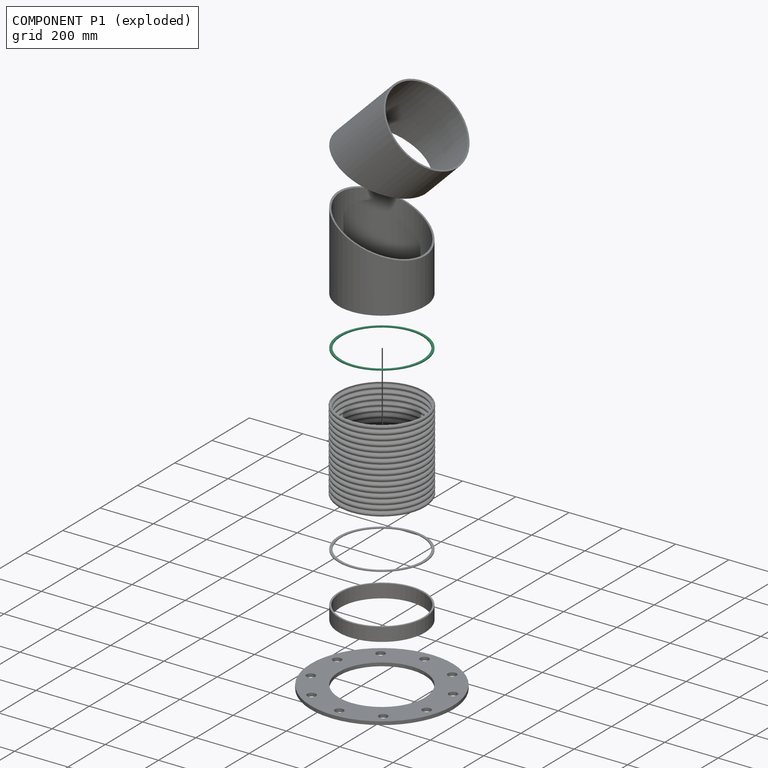
[diagram: component P1 — exploded]
COMPONENT P1 — recipe-attached (CADFS 00170317, mesh-verified: the recipe's output STEP matches this component's geometry to below the mesh-comparison resolution (tessellation chordal tolerance ~0.686 mm)).
Held by: FASTENED mate "Fastened 5" to P5; FASTENED mate "Fastened 4" to P9; FASTENED mate "Fastened 4" to P9; FASTENED mate "Fastened 5" to P5.
Construction recipe (FeatureScript — the CAD program that rebuilds this solid; sketch coordinates are in the units given by the * unit suffixes, e.g. mm):

FeatureScript 1511;
import(path : "onshape/std/geometry.fs", version : "1511.0");
import(path : "onshape/std/common.fs", version : "1511.0");
const mm = millimeter;
const VERTEX = EntityType.VERTEX;
const EDGE = EntityType.EDGE;
const FACE = EntityType.FACE;
const BODY = EntityType.BODY;
function v(x, y){return vector(x, y);}
function OD(order){return orderDisambiguation(order);}
function OSD(set){return originalSetDisambiguation(set);}
function TD(topology){return topologyDisambiguation(topology);}
function TDD(query){return trueDependencyDisambiguation(query);}
function sQuery(a, b, c) {return sketchEntityQuery(a, b, c);}

annotation { "Feature Type Name" : "Feature", "Feature Type Description" : "" }
export const myFeature = defineFeature(function(context is Context, id is Id, definition is map)
    precondition{}
    {
        {
            var Q0;
            Q0=qCreatedBy(makeId("Top.planeOp"),FACE);
            var sketch = newSketch(context, id + "F0", { "sketchPlane" : qUnion([Q0])});
            skCircle(sketch, "E0", {"center": v(0, 0) * mm, "radius": 161.93 * mm});
            skCircle(sketch, "E1", {"center": v(0, 0) * mm, "radius": 152.4 * mm});
            skSolve(sketch);
        }
        {
            var Q0;
            Q0 = qSketchRegion(id + "F0", true);
            extrude(context, id + "F1", {"entities" : qUnion([Q0]), "depth" : 3.17 * mm});
        }
    });
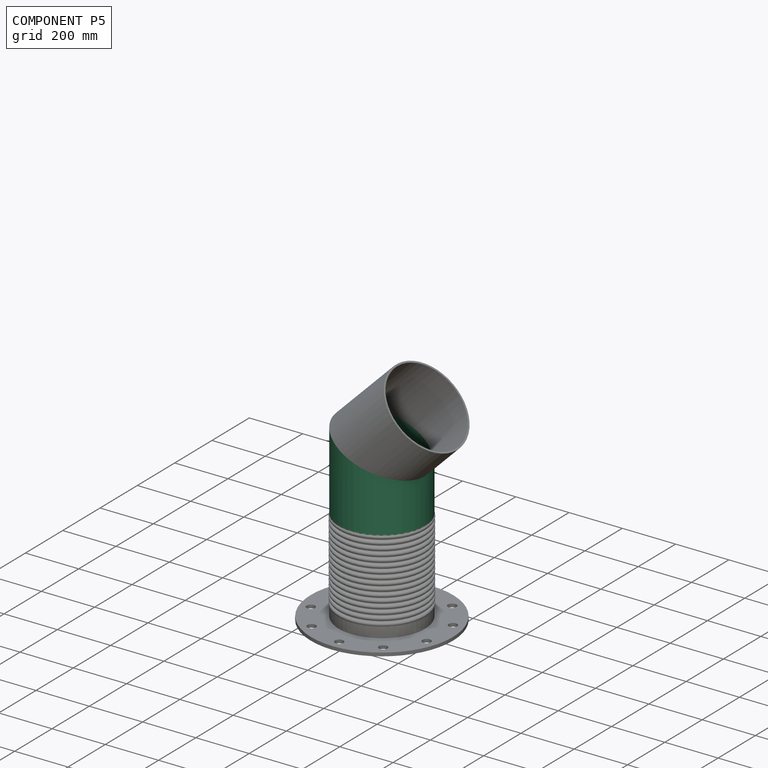
[diagram: component P5 — assembled]
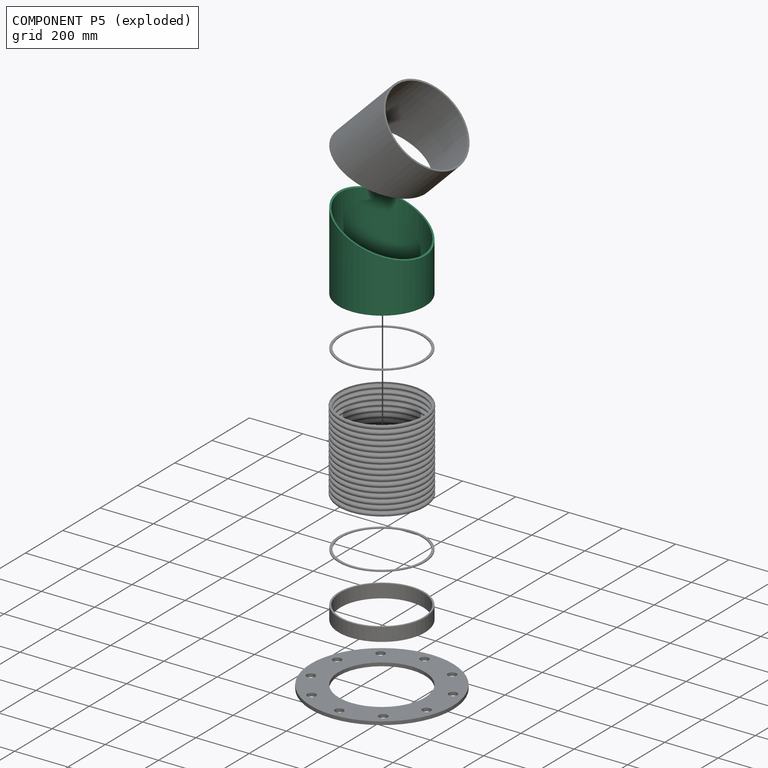
[diagram: component P5 — exploded]
COMPONENT P5 — recipe-attached (CADFS 00170320, mesh-verified: the recipe's output STEP matches this component's geometry to below the mesh-comparison resolution (tessellation chordal tolerance ~0.825 mm)).
Held by: FASTENED mate "Fastened 5" to P1; FASTENED mate "Fastened 6" to P10; FASTENED mate "Fastened 6" to P10; FASTENED mate "Fastened 5" to P1.
Construction recipe (FeatureScript — the CAD program that rebuilds this solid; sketch coordinates are in the units given by the * unit suffixes, e.g. mm):

FeatureScript 1511;
import(path : "onshape/std/geometry.fs", version : "1511.0");
import(path : "onshape/std/common.fs", version : "1511.0");
const mm = millimeter;
const VERTEX = EntityType.VERTEX;
const EDGE = EntityType.EDGE;
const FACE = EntityType.FACE;
const BODY = EntityType.BODY;
function v(x, y){return vector(x, y);}
function OD(order){return orderDisambiguation(order);}
function OSD(set){return originalSetDisambiguation(set);}
function TD(topology){return topologyDisambiguation(topology);}
function TDD(query){return trueDependencyDisambiguation(query);}
function sQuery(a, b, c) {return sketchEntityQuery(a, b, c);}

annotation { "Feature Type Name" : "Feature", "Feature Type Description" : "" }
export const myFeature = defineFeature(function(context is Context, id is Id, definition is map)
    precondition{}
    {
        {
            var Q0;
            Q0=qCreatedBy(makeId("Top.planeOp"),FACE);
            var sketch = newSketch(context, id + "F0", { "sketchPlane" : qUnion([Q0])});
            skCircle(sketch, "E0", {"center": v(0, 0) * mm, "radius": 161.93 * mm});
            skCircle(sketch, "E1.0", {"center": v(0, 0) * mm, "radius": 155.58 * mm});
            skSolve(sketch);
        }
        {
            var Q0;
            Q0=makeQuery(id+"F0.imprint","IMPRINT",FACE,{"disambiguationData":[TD([[makeQuery(id+"F0.imprint","IMPRINT",EDGE,{"derivedFrom":sQuery(id+"F0.wireOp",EDGE,"E1.0")}),-1.0]])]});
            extrude(context, id + "F1", {"entities" : qUnion([Q0]), "depth" : 304.8 * mm});
        }
        {
            var Q0;
            Q0=qCreatedBy(makeId("Front.planeOp"),FACE);
            var sketch = newSketch(context, id + "F2", { "sketchPlane" : qUnion([Q0])});
            skLineSegment(sketch, "E2", {"start": v(0, 0) * mm, "end": v(0, 229.3) * mm, "construction": true});
            skLineSegment(sketch, "E3", {"start": v(0, 229.3) * mm, "end": v(-161.93, 229.3) * mm, "construction": true});
            skLineSegment(sketch, "E4", {"start": v(-161.93, 229.3) * mm, "end": v(-161.93, 304.8) * mm, "construction": true});
            skLineSegment(sketch, "E5", {"start": v(-161.93, 304.8) * mm, "end": v(161.93, 170.66) * mm});
            skLineSegment(sketch, "E6", {"start": v(-161.93, 304.8) * mm, "end": v(-161.93, 423.7) * mm});
            skLineSegment(sketch, "E7", {"start": v(-161.93, 423.7) * mm, "end": v(165.99, 433.47) * mm});
            skLineSegment(sketch, "E8", {"start": v(165.99, 433.47) * mm, "end": v(161.92, 170.66) * mm});
            skSolve(sketch);
        }
        {
            var Q0;
            Q0 = qSketchRegion(id + "F2", true);
            extrude(context, id + "F3", {"entities" : qUnion([Q0]), "operationType" : NewBodyOperationType.REMOVE, "endBound" : BoundingType.THROUGH_ALL, "oppositeDirection" : true, "depth" : 25.4 * mm, "hasSecondDirection" : true, "secondDirectionBound" : SecondDirectionBoundingType.THROUGH_ALL, "secondDirectionOppositeDirection" : false, "secondDirectionDepth" : 25.4 * mm});
        }
    });
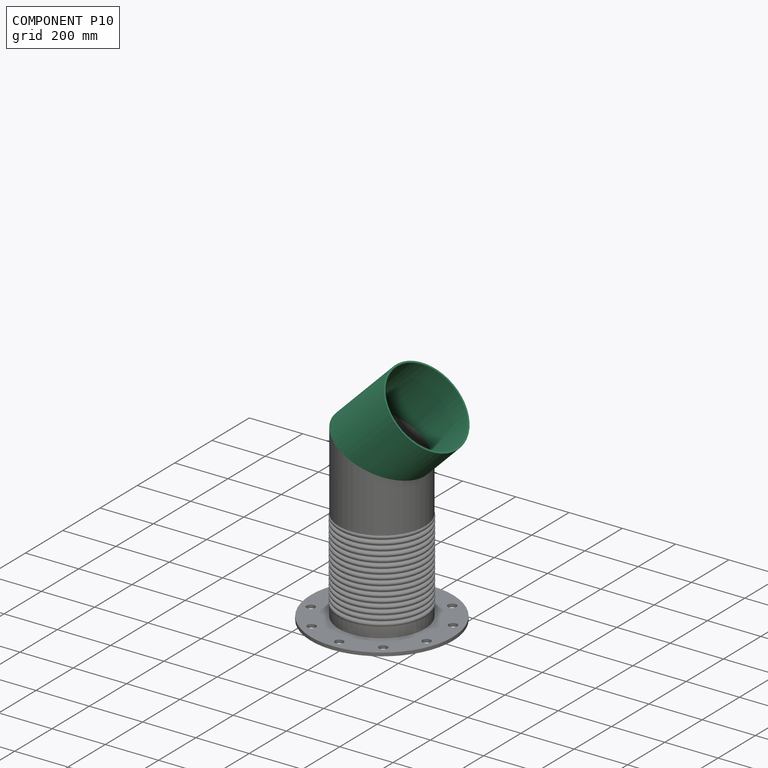
[diagram: component P10 — assembled]
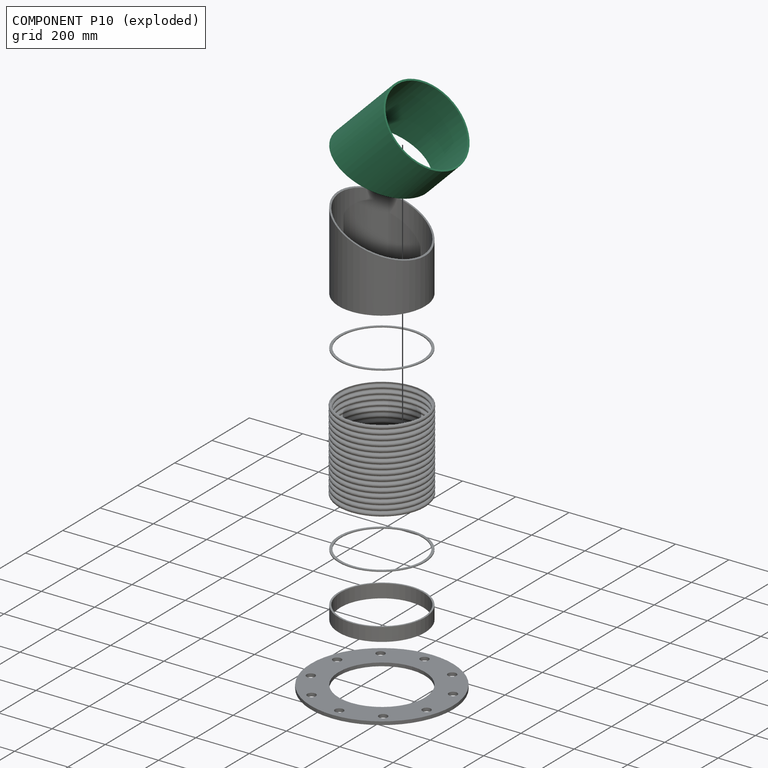
[diagram: component P10 — exploded]
COMPONENT P10 — same part as P5 (CADFS 00170320); its construction recipe is shown at P5.
Held by: FASTENED mate "Fastened 6" to P5; FASTENED mate "Fastened 6" to P5.
